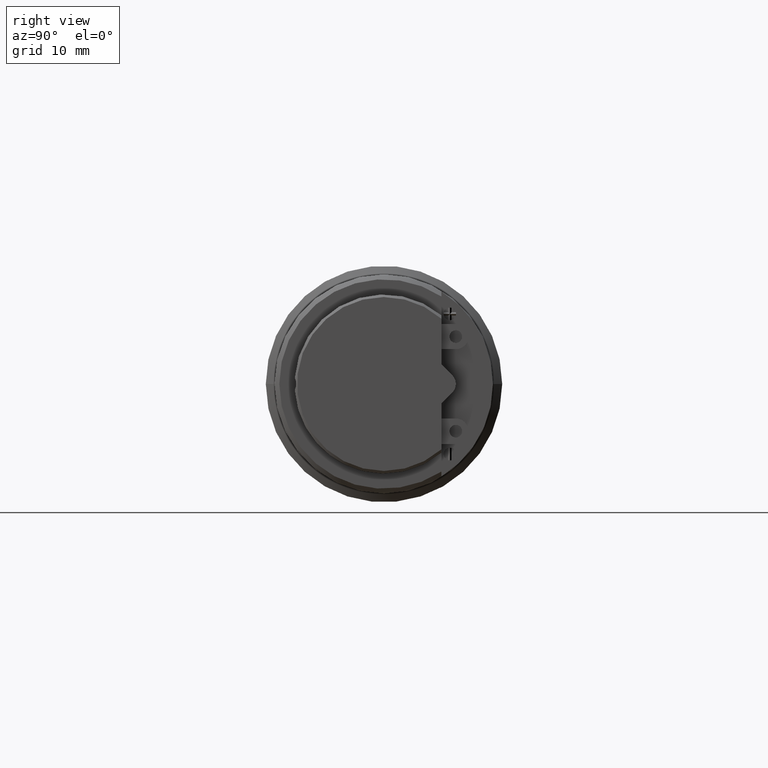
[diagram: clean part render]
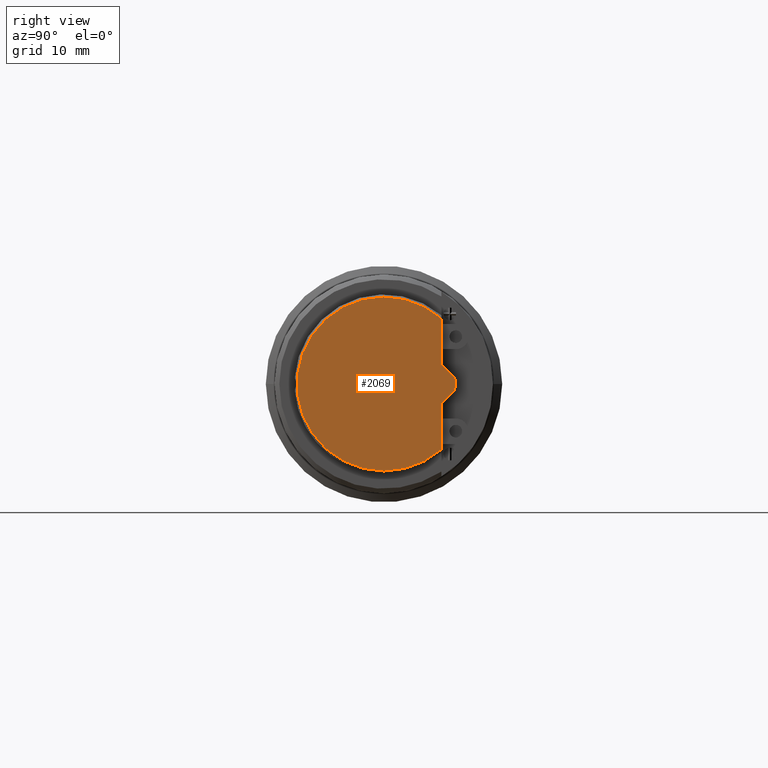
[diagram: same view with one face highlighted and labeled with its STEP entity id]
A machine part, right view. The second image highlights one B-rep face of the part: STEP entity #2069.
In plain terms, the highlighted planar face has unit normal (1, 0, 0).
Its self-contained STEP definition (entity closure, byte-faithful):
#117=CARTESIAN_POINT('',(3.424999826563E1,6.799997423704E0,7.736274918247E0));
#194=CARTESIAN_POINT('',(3.424999956641E1,6.799996564940E0,-7.736273941240E0));
#219=CARTESIAN_POINT('',(3.425E1,0.E0,9.059419880941E-14));
#220=DIRECTION('',(-1.E0,0.E0,0.E0));
#221=DIRECTION('',(0.E0,6.601941747573E-1,-7.510949684404E-1));
#222=AXIS2_PLACEMENT_3D('',#219,#220,#221);
#224=CARTESIAN_POINT('',(3.425E1,0.E0,9.059419880941E-14));
#225=DIRECTION('',(-1.E0,0.E0,0.E0));
#226=DIRECTION('',(0.E0,0.E0,-1.E0));
#227=AXIS2_PLACEMENT_3D('',#224,#225,#226);
#229=DIRECTION('',(3.202926475861E-7,4.493422695704E-7,-9.999999999998E-1));
#230=VECTOR('',#229,5.414954574688E0);
#231=CARTESIAN_POINT('',(3.424999826563E1,6.799997423704E0,7.736274918247E0));
#232=LINE('',#231,#230);
#233=DIRECTION('',(0.E0,7.071068213268E-1,-7.071067410463E-1));
#234=VECTOR('',#233,1.782842813681E0);
#235=CARTESIAN_POINT('',(3.425E1,6.799999856872E0,2.321320343560E0));
#236=LINE('',#235,#234);
#237=CARTESIAN_POINT('',(3.425E1,7.E0,0.E0));
#238=DIRECTION('',(-1.E0,0.E0,0.E0));
#239=DIRECTION('',(0.E0,7.071067811865E-1,7.071067811865E-1));
#240=AXIS2_PLACEMENT_3D('',#237,#238,#239);
#242=DIRECTION('',(-1.216016812728E-7,-7.071067811864E-1,-7.071067811867E-1));
#243=VECTOR('',#242,1.782842712475E0);
#244=CARTESIAN_POINT('',(3.425E1,8.060660171780E0,-1.060660171780E0));
#245=LINE('',#244,#243);
#246=DIRECTION('',(-4.003658932012E-8,-6.343655896306E-7,-9.999999999998E-1));
#247=VECTOR('',#246,5.414953597681E0);
#248=CARTESIAN_POINT('',(3.424999978320E1,6.8E0,-2.321320343560E0));
#249=LINE('',#248,#247);
#1441=VERTEX_POINT('',#117);
#1464=VERTEX_POINT('',#194);
#1465=CARTESIAN_POINT('',(3.424999978320E1,6.8E0,-2.321320343560E0));
#1466=VERTEX_POINT('',#1465);
#1475=CARTESIAN_POINT('',(3.425E1,0.E0,-1.029999219534E1));
#1476=VERTEX_POINT('',#1475);
#1477=CARTESIAN_POINT('',(3.425E1,6.799999856872E0,2.321320343560E0));
#1478=VERTEX_POINT('',#1477);
#1479=CARTESIAN_POINT('',(3.425E1,8.060660171780E0,1.060660171780E0));
#1480=VERTEX_POINT('',#1479);
#1481=CARTESIAN_POINT('',(3.425E1,8.060660171780E0,-1.060660171780E0));
#1482=VERTEX_POINT('',#1481);
#2052=CARTESIAN_POINT('',(3.425E1,-9.000552988891E-1,1.784453476557E-4));
#2053=DIRECTION('',(1.E0,0.E0,0.E0));
#2054=DIRECTION('',(0.E0,-1.E0,0.E0));
#2055=AXIS2_PLACEMENT_3D('',#2052,#2053,#2054);
#2056=PLANE('',#2055);
#2057=ORIENTED_EDGE('',*,*,#1954,.T.);
#2058=ORIENTED_EDGE('',*,*,#1952,.T.);
#2059=ORIENTED_EDGE('',*,*,#1927,.T.);
#2061=ORIENTED_EDGE('',*,*,#2060,.T.);
#2063=ORIENTED_EDGE('',*,*,#2062,.T.);
#2065=ORIENTED_EDGE('',*,*,#2064,.T.);
#2066=ORIENTED_EDGE('',*,*,#2030,.T.);
#2067=EDGE_LOOP('',(#2057,#2058,#2059,#2061,#2063,#2065,#2066));
#2068=FACE_OUTER_BOUND('',#2067,.F.);
#2069=ADVANCED_FACE('',(#2068),#2056,.T.);
#223=CIRCLE('',#222,1.029999219534E1);
#228=CIRCLE('',#227,1.029999219534E1);
#241=CIRCLE('',#240,1.5E0);
#1927=EDGE_CURVE('',#1441,#1478,#232,.T.);
#1952=EDGE_CURVE('',#1476,#1441,#228,.T.);
#1954=EDGE_CURVE('',#1464,#1476,#223,.T.);
#2030=EDGE_CURVE('',#1466,#1464,#249,.T.);
#2060=EDGE_CURVE('',#1478,#1480,#236,.T.);
#2062=EDGE_CURVE('',#1480,#1482,#241,.T.);
#2064=EDGE_CURVE('',#1482,#1466,#245,.T.);